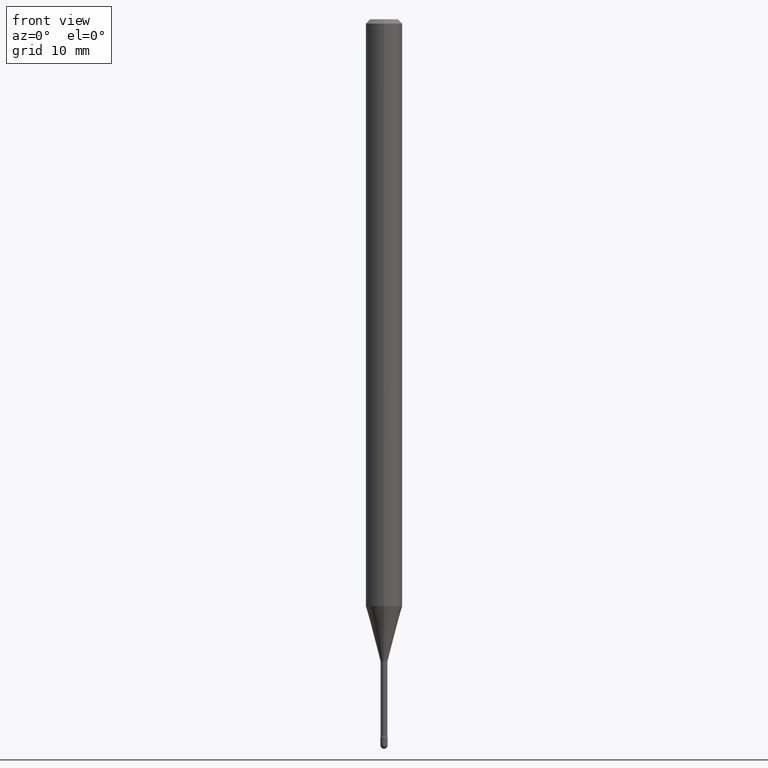
[diagram: clean part render]
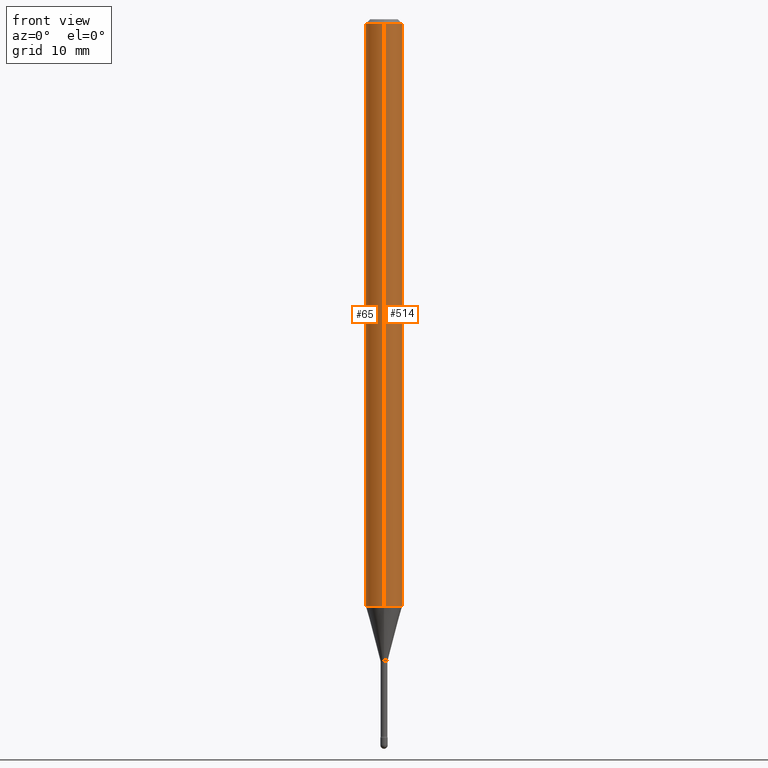
[diagram: same view with one multi-face feature highlighted, each face labeled with its STEP entity id]
A machine part, front view. The highlighted faces form ONE feature: a constant-radius fillet chain: 2 tangent blend faces with common blend radius 1.5875 mm. The faces share edges in the B-rep.
Their STEP definitions:
[1] entity #514 (Cylinder):
#15 = VERTEX_POINT ( 'NONE', #67 ) ;
#23 = CARTESIAN_POINT ( 'NONE',  ( 4.440892098501121172E-16, 0.06249999999999995143, -0.01500000000000030129 ) ) ;
#25 = CARTESIAN_POINT ( 'NONE',  ( -1.169113584055446105E-44, 1.669184350826100908E-30, 4.780733988912460139E-16 ) ) ;
#37 = EDGE_CURVE ( 'NONE', #321, #559, #335, .T. ) ;
#67 = CARTESIAN_POINT ( 'NONE',  ( -4.364351673553912750E-16, -0.06250000000000005551, -0.01499999999999986587 ) ) ;
#90 = DIRECTION ( 'NONE',  ( -2.445406232005474287E-29, 3.491570948629923223E-15, 1.000000000000000000 ) ) ;
#94 = ORIENTED_EDGE ( 'NONE', *, *, #225, .F. ) ;
#101 = VERTEX_POINT ( 'NONE', #333 ) ;
#108 = DIRECTION ( 'NONE',  ( -2.445406232005474287E-29, 3.491570948629923223E-15, 1.000000000000000000 ) ) ;
#121 = AXIS2_PLACEMENT_3D ( 'NONE', #133, #538, #173 ) ;
#133 = CARTESIAN_POINT ( 'NONE',  ( 3.668109348008231504E-31, -5.237356422944913579E-17, -0.01500000000000008271 ) ) ;
#164 = ORIENTED_EDGE ( 'NONE', *, *, #404, .T. ) ;
#172 = CARTESIAN_POINT ( 'NONE',  ( -4.364351673553916201E-16, -0.06250000000000000000, 6.962965831806161907E-16 ) ) ;
#173 = DIRECTION ( 'NONE',  ( -6.982962677686265922E-15, -1.000000000000000000, 3.483106191921935554E-15 ) ) ;
#188 = DIRECTION ( 'NONE',  ( -2.445406232005474567E-29, 3.491570948629923618E-15, 1.000000000000000000 ) ) ;
#189 = CIRCLE ( 'NONE', #121, 0.06250000000000000000 ) ;
#195 = VECTOR ( 'NONE', #188, 39.37007874015748143 ) ;
#225 = EDGE_CURVE ( 'NONE', #15, #559, #189, .T. ) ;
#252 = AXIS2_PLACEMENT_3D ( 'NONE', #263, #90, #310 ) ;
#262 = EDGE_CURVE ( 'NONE', #101, #15, #391, .T. ) ;
#263 = CARTESIAN_POINT ( 'NONE',  ( 4.916729910035301383E-29, -7.020147037926026338E-15, -2.010598421515879419 ) ) ;
#293 = AXIS2_PLACEMENT_3D ( 'NONE', #25, #108, #466 ) ;
#308 = CARTESIAN_POINT ( 'NONE',  ( 4.440892098501117228E-16, 0.06249999999999298478, -2.010598421515879863 ) ) ;
#310 = DIRECTION ( 'NONE',  ( -6.982962677686265922E-15, -1.000000000000000000, 4.370956789862821150E-15 ) ) ;
#321 = VERTEX_POINT ( 'NONE', #308 ) ;
#333 = CARTESIAN_POINT ( 'NONE',  ( -4.364351673553424642E-16, -0.06250000000000702216, -2.010598421515879419 ) ) ;
#335 = LINE ( 'NONE', #467, #195 ) ;
#367 = ORIENTED_EDGE ( 'NONE', *, *, #37, .T. ) ;
#391 = LINE ( 'NONE', #172, #424 ) ;
#404 = EDGE_CURVE ( 'NONE', #101, #321, #503, .T. ) ;
#424 = VECTOR ( 'NONE', #446, 39.37007874015748143 ) ;
#426 = FACE_OUTER_BOUND ( 'NONE', #494, .T. ) ;
#446 = DIRECTION ( 'NONE',  ( -2.445406232005474567E-29, 3.491570948629923618E-15, 1.000000000000000000 ) ) ;
#466 = DIRECTION ( 'NONE',  ( -6.982962677686265922E-15, -1.000000000000000000, 3.491570948629922829E-15 ) ) ;
#467 = CARTESIAN_POINT ( 'NONE',  ( 4.440892098500625669E-16, 0.06250000000000000000, 2.598502146018758371E-16 ) ) ;
#494 = EDGE_LOOP ( 'NONE', ( #164, #367, #94, #529 ) ) ;
#503 = CIRCLE ( 'NONE', #252, 0.06250000000000000000 ) ;
#506 = CYLINDRICAL_SURFACE ( 'NONE', #293, 0.06250000000000000000 ) ;
#514 = ADVANCED_FACE ( 'NONE', ( #426 ), #506, .T. ) ;
#529 = ORIENTED_EDGE ( 'NONE', *, *, #262, .F. ) ;
#538 = DIRECTION ( 'NONE',  ( -2.445406232005474287E-29, 3.491570948629923223E-15, 1.000000000000000000 ) ) ;
#559 = VERTEX_POINT ( 'NONE', #23 ) ;
[2] entity #65 (Cylinder):
#15 = VERTEX_POINT ( 'NONE', #67 ) ;
#23 = CARTESIAN_POINT ( 'NONE',  ( 4.440892098501121172E-16, 0.06249999999999995143, -0.01500000000000030129 ) ) ;
#37 = EDGE_CURVE ( 'NONE', #321, #559, #335, .T. ) ;
#41 = DIRECTION ( 'NONE',  ( -2.445406232005474287E-29, 3.491570948629923223E-15, 1.000000000000000000 ) ) ;
#47 = DIRECTION ( 'NONE',  ( -6.982962677686265922E-15, -1.000000000000000000, 4.370956789862821150E-15 ) ) ;
#48 = ORIENTED_EDGE ( 'NONE', *, *, #37, .F. ) ;
#63 = CIRCLE ( 'NONE', #151, 0.06250000000000000000 ) ;
#65 = ADVANCED_FACE ( 'NONE', ( #111 ), #509, .T. ) ;
#67 = CARTESIAN_POINT ( 'NONE',  ( -4.364351673553912750E-16, -0.06250000000000005551, -0.01499999999999986587 ) ) ;
#72 = DIRECTION ( 'NONE',  ( -6.982962677686265922E-15, -1.000000000000000000, 3.483106191921935554E-15 ) ) ;
#101 = VERTEX_POINT ( 'NONE', #333 ) ;
#103 = DIRECTION ( 'NONE',  ( -6.982962677686265922E-15, -1.000000000000000000, 3.491570948629922829E-15 ) ) ;
#111 = FACE_OUTER_BOUND ( 'NONE', #250, .T. ) ;
#131 = AXIS2_PLACEMENT_3D ( 'NONE', #175, #41, #47 ) ;
#151 = AXIS2_PLACEMENT_3D ( 'NONE', #479, #344, #72 ) ;
#166 = ORIENTED_EDGE ( 'NONE', *, *, #431, .F. ) ;
#172 = CARTESIAN_POINT ( 'NONE',  ( -4.364351673553916201E-16, -0.06250000000000000000, 6.962965831806161907E-16 ) ) ;
#175 = CARTESIAN_POINT ( 'NONE',  ( 4.916729910035301383E-29, -7.020147037926026338E-15, -2.010598421515879419 ) ) ;
#188 = DIRECTION ( 'NONE',  ( -2.445406232005474567E-29, 3.491570948629923618E-15, 1.000000000000000000 ) ) ;
#195 = VECTOR ( 'NONE', #188, 39.37007874015748143 ) ;
#233 = AXIS2_PLACEMENT_3D ( 'NONE', #550, #457, #103 ) ;
#250 = EDGE_LOOP ( 'NONE', ( #48, #270, #280, #166 ) ) ;
#262 = EDGE_CURVE ( 'NONE', #101, #15, #391, .T. ) ;
#270 = ORIENTED_EDGE ( 'NONE', *, *, #405, .T. ) ;
#280 = ORIENTED_EDGE ( 'NONE', *, *, #262, .T. ) ;
#298 = CIRCLE ( 'NONE', #131, 0.06250000000000000000 ) ;
#308 = CARTESIAN_POINT ( 'NONE',  ( 4.440892098501117228E-16, 0.06249999999999298478, -2.010598421515879863 ) ) ;
#321 = VERTEX_POINT ( 'NONE', #308 ) ;
#333 = CARTESIAN_POINT ( 'NONE',  ( -4.364351673553424642E-16, -0.06250000000000702216, -2.010598421515879419 ) ) ;
#335 = LINE ( 'NONE', #467, #195 ) ;
#344 = DIRECTION ( 'NONE',  ( -2.445406232005474287E-29, 3.491570948629923223E-15, 1.000000000000000000 ) ) ;
#391 = LINE ( 'NONE', #172, #424 ) ;
#405 = EDGE_CURVE ( 'NONE', #321, #101, #298, .T. ) ;
#424 = VECTOR ( 'NONE', #446, 39.37007874015748143 ) ;
#431 = EDGE_CURVE ( 'NONE', #559, #15, #63, .T. ) ;
#446 = DIRECTION ( 'NONE',  ( -2.445406232005474567E-29, 3.491570948629923618E-15, 1.000000000000000000 ) ) ;
#457 = DIRECTION ( 'NONE',  ( -2.445406232005474287E-29, 3.491570948629923223E-15, 1.000000000000000000 ) ) ;
#467 = CARTESIAN_POINT ( 'NONE',  ( 4.440892098500625669E-16, 0.06250000000000000000, 2.598502146018758371E-16 ) ) ;
#479 = CARTESIAN_POINT ( 'NONE',  ( 3.668109348008231504E-31, -5.237356422944913579E-17, -0.01500000000000008271 ) ) ;
#509 = CYLINDRICAL_SURFACE ( 'NONE', #233, 0.06250000000000000000 ) ;
#550 = CARTESIAN_POINT ( 'NONE',  ( -1.169113584055446105E-44, 1.669184350826100908E-30, 4.780733988912460139E-16 ) ) ;
#559 = VERTEX_POINT ( 'NONE', #23 ) ;